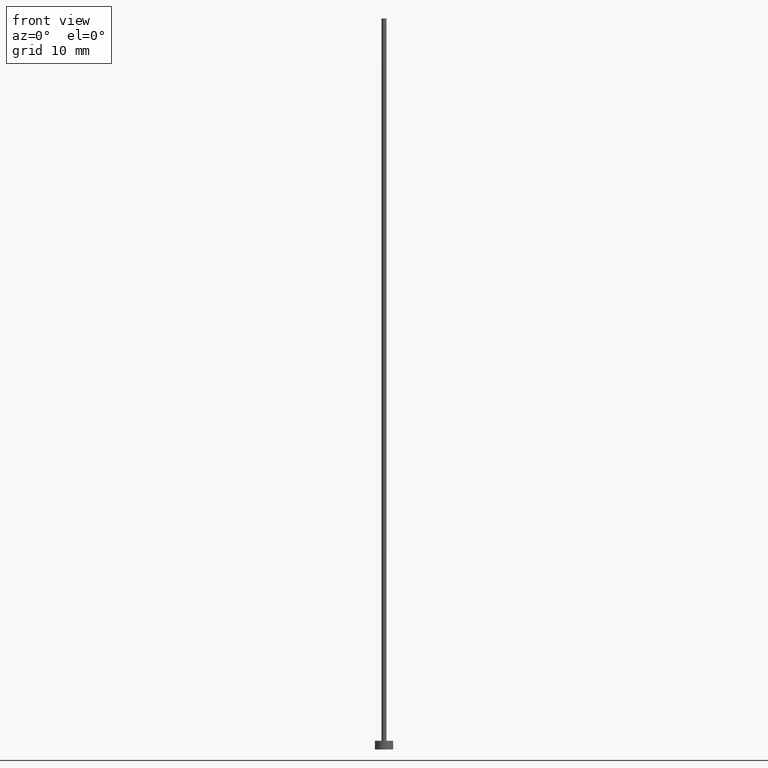
[diagram: clean part render]
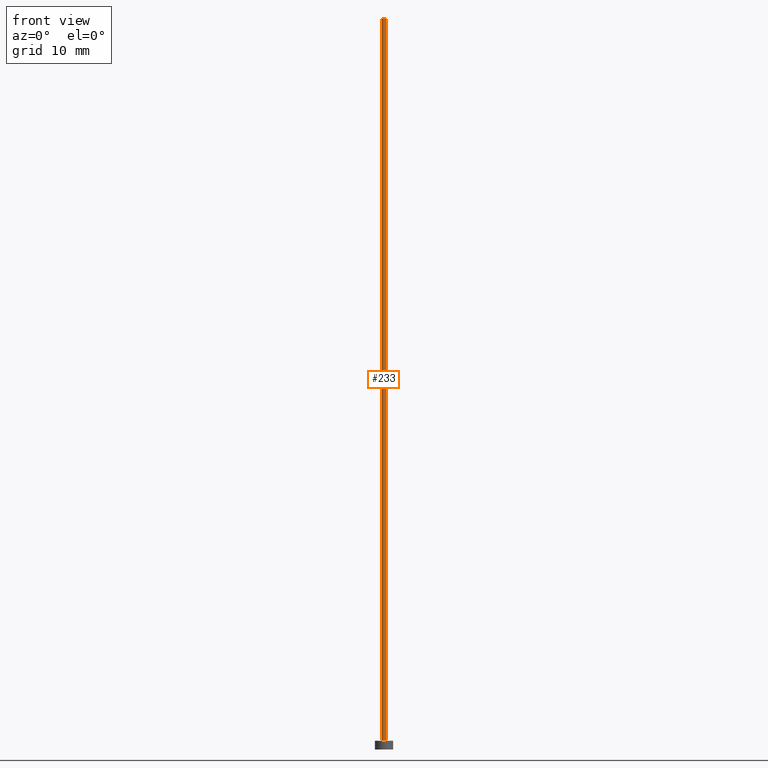
[diagram: same view with one face highlighted and labeled with its STEP entity id]
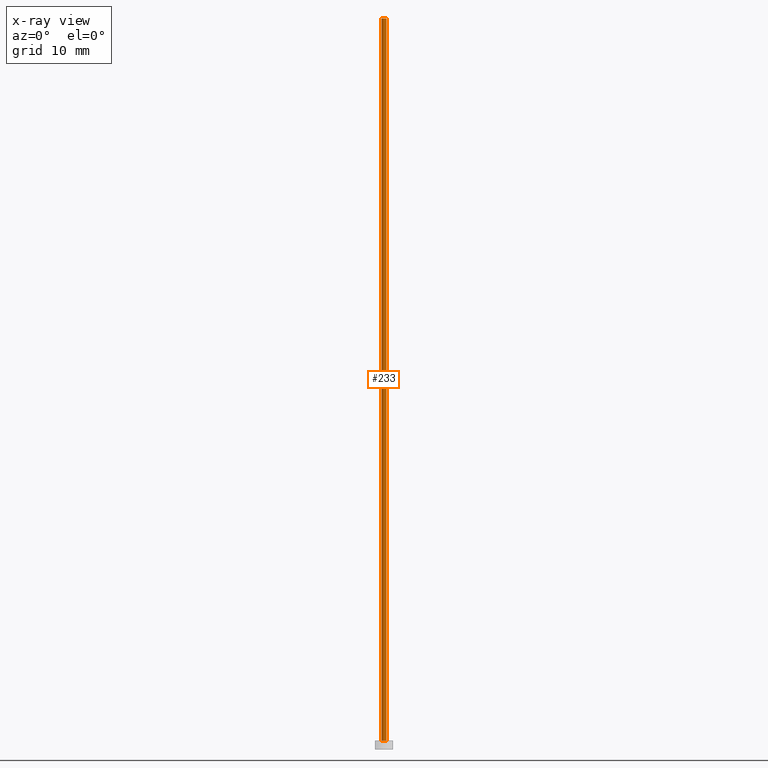
[diagram: x-ray of the same camera — body ghosted, the highlighted face saturated]
A machine part, front view. The second image highlights one B-rep face of the part: STEP entity #233.
The next image is the same camera in x-ray: the body ghosted, the highlighted face saturated — about 0% of this face is hidden behind the body in this view.
In plain terms, the highlighted cylindrical surface (edge-blend (fillet) strip) has radius 0.35 mm, axis along (-0, -0, -1).
Its self-contained STEP definition (entity closure, byte-faithful):
#6 = VERTEX_POINT ( 'NONE', #139 ) ;
#8 = CARTESIAN_POINT ( 'NONE',  ( 0.3499999999999999778, 4.286263797015735979E-17, 100.0000000000000000 ) ) ;
#12 = EDGE_LOOP ( 'NONE', ( #46, #48, #118, #180 ) ) ;
#14 = DIRECTION ( 'NONE',  ( 1.000000000000000000, 0.000000000000000000, 0.000000000000000000 ) ) ;
#17 = DIRECTION ( 'NONE',  ( -0.000000000000000000, -0.000000000000000000, -1.000000000000000000 ) ) ;
#22 = CARTESIAN_POINT ( 'NONE',  ( -0.3499999999999999778, 0.000000000000000000, 100.0000000000000000 ) ) ;
#38 = DIRECTION ( 'NONE',  ( 0.000000000000000000, 0.000000000000000000, 1.000000000000000000 ) ) ;
#40 = EDGE_CURVE ( 'NONE', #154, #6, #214, .T. ) ;
#44 = CARTESIAN_POINT ( 'NONE',  ( 0.000000000000000000, 0.000000000000000000, 100.0000000000000000 ) ) ;
#46 = ORIENTED_EDGE ( 'NONE', *, *, #95, .F. ) ;
#48 = ORIENTED_EDGE ( 'NONE', *, *, #40, .F. ) ;
#49 = LINE ( 'NONE', #8, #93 ) ;
#52 = EDGE_CURVE ( 'NONE', #154, #253, #150, .T. ) ;
#56 = AXIS2_PLACEMENT_3D ( 'NONE', #135, #218, #57 ) ;
#57 = DIRECTION ( 'NONE',  ( 1.000000000000000000, 0.000000000000000000, 0.000000000000000000 ) ) ;
#58 = EDGE_CURVE ( 'NONE', #253, #195, #110, .T. ) ;
#59 = CYLINDRICAL_SURFACE ( 'NONE', #115, 0.3499999999999999778 ) ;
#63 = DIRECTION ( 'NONE',  ( -0.000000000000000000, -0.000000000000000000, -1.000000000000000000 ) ) ;
#64 = DIRECTION ( 'NONE',  ( -0.000000000000000000, -0.000000000000000000, -1.000000000000000000 ) ) ;
#92 = CARTESIAN_POINT ( 'NONE',  ( 0.000000000000000000, 0.000000000000000000, 1.199999999999999956 ) ) ;
#93 = VECTOR ( 'NONE', #64, 1000.000000000000000 ) ;
#95 = EDGE_CURVE ( 'NONE', #6, #195, #49, .T. ) ;
#106 = AXIS2_PLACEMENT_3D ( 'NONE', #92, #38, #14 ) ;
#110 = CIRCLE ( 'NONE', #106, 0.3499999999999999778 ) ;
#115 = AXIS2_PLACEMENT_3D ( 'NONE', #44, #63, #191 ) ;
#118 = ORIENTED_EDGE ( 'NONE', *, *, #52, .T. ) ;
#127 = CARTESIAN_POINT ( 'NONE',  ( -0.3499999999999999778, 0.000000000000000000, 1.199999999999999956 ) ) ;
#135 = CARTESIAN_POINT ( 'NONE',  ( 0.000000000000000000, 0.000000000000000000, 100.0000000000000000 ) ) ;
#139 = CARTESIAN_POINT ( 'NONE',  ( 0.3499999999999999778, 4.286263797015735979E-17, 100.0000000000000000 ) ) ;
#150 = LINE ( 'NONE', #172, #249 ) ;
#154 = VERTEX_POINT ( 'NONE', #22 ) ;
#172 = CARTESIAN_POINT ( 'NONE',  ( -0.3499999999999999778, 0.000000000000000000, 100.0000000000000000 ) ) ;
#180 = ORIENTED_EDGE ( 'NONE', *, *, #58, .T. ) ;
#191 = DIRECTION ( 'NONE',  ( -1.000000000000000000, 0.000000000000000000, 0.000000000000000000 ) ) ;
#195 = VERTEX_POINT ( 'NONE', #229 ) ;
#214 = CIRCLE ( 'NONE', #56, 0.3499999999999999778 ) ;
#216 = FACE_OUTER_BOUND ( 'NONE', #12, .T. ) ;
#218 = DIRECTION ( 'NONE',  ( 0.000000000000000000, 0.000000000000000000, 1.000000000000000000 ) ) ;
#229 = CARTESIAN_POINT ( 'NONE',  ( 0.3499999999999999778, 4.286263797015735979E-17, 1.199999999999999956 ) ) ;
#233 = ADVANCED_FACE ( 'NONE', ( #216 ), #59, .T. ) ;
#249 = VECTOR ( 'NONE', #17, 1000.000000000000000 ) ;
#253 = VERTEX_POINT ( 'NONE', #127 ) ;